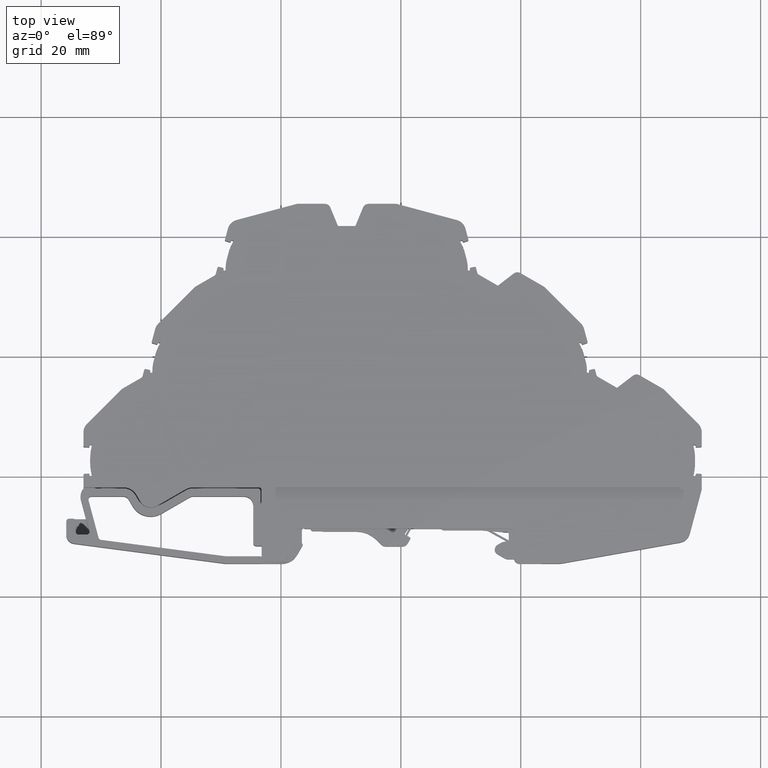
[diagram: clean part render]
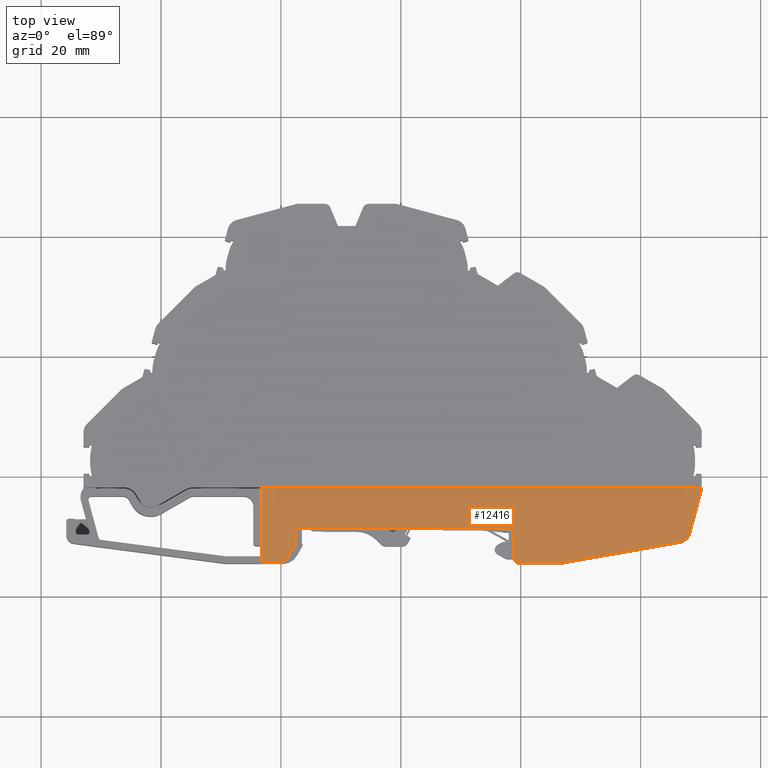
[diagram: same view with one face highlighted and labeled with its STEP entity id]
A machine part, top view. The second image highlights one B-rep face of the part: STEP entity #12416.
In plain terms, the highlighted planar face has unit normal (0, 0, 1).
Its self-contained STEP definition (entity closure, byte-faithful):
#372 = DIRECTION ( 'NONE',  ( 0.0000000000000000000, 0.0000000000000000000, -1.000000000000000000 ) ) ;
#387 = DIRECTION ( 'NONE',  ( -1.000000000000000000, 0.0000000000000000000, 0.0000000000000000000 ) ) ;
#406 = CARTESIAN_POINT ( 'NONE',  ( 236.2775535535379800, 17.65365339502465100, 6.154999999999994000 ) ) ;
#555 = DIRECTION ( 'NONE',  ( 0.9848077430902918400, 0.1736482339369035700, 0.0000000000000000000 ) ) ;
#583 = CARTESIAN_POINT ( 'NONE',  ( 286.9894377300924500, 5.529613790183489600, 6.155000000000002900 ) ) ;
#590 = LINE ( 'NONE', #583, #13464 ) ;
#605 = DIRECTION ( 'NONE',  ( 0.2587927769330645700, 0.9659328644410402100, -0.0000000000000000000 ) ) ;
#608 = CARTESIAN_POINT ( 'NONE',  ( 310.1925644423637300, 17.95374747195260000, 6.155000000000001100 ) ) ;
#615 = CARTESIAN_POINT ( 'NONE',  ( 231.6058932644780300, 5.453652283857863400, 6.155000000000002900 ) ) ;
#616 = LINE ( 'NONE', #608, #13519 ) ;
#627 = DIRECTION ( 'NONE',  ( 1.000000000000000000, 0.0000000000000000000, -0.0000000000000000000 ) ) ;
#638 = LINE ( 'NONE', #615, #13479 ) ;
#693 = CARTESIAN_POINT ( 'NONE',  ( 259.6925597848063500, 18.15365339502481100, 6.154999999999994000 ) ) ;
#697 = DIRECTION ( 'NONE',  ( 1.000000000000000000, 7.546894870103224200E-016, 0.0000000000000000000 ) ) ;
#712 = LINE ( 'NONE', #715, #13601 ) ;
#713 = LINE ( 'NONE', #693, #13653 ) ;
#715 = CARTESIAN_POINT ( 'NONE',  ( 310.1925644423637300, -4.273463303793795000, 6.155000000000002900 ) ) ;
#718 = DIRECTION ( 'NONE',  ( -0.0000000000000000000, 1.000000000000000000, 0.0000000000000000000 ) ) ;
#835 = DIRECTION ( 'NONE',  ( -1.000000000000000000, 0.0000000000000000000, 0.0000000000000000000 ) ) ;
#843 = CARTESIAN_POINT ( 'NONE',  ( 306.2472267758689700, 10.95613596654143900, 6.155000000000001100 ) ) ;
#866 = DIRECTION ( 'NONE',  ( 0.0000000000000000000, 0.0000000000000000000, -1.000000000000000000 ) ) ;
#4409 = EDGE_CURVE ( 'NONE', #18470, #18564, #15461, .T. ) ;
#4576 = EDGE_CURVE ( 'NONE', #18722, #18720, #15629, .T. ) ;
#4581 = EDGE_CURVE ( 'NONE', #18754, #18743, #15976, .T. ) ;
#4591 = EDGE_CURVE ( 'NONE', #18776, #18775, #15559, .T. ) ;
#4601 = EDGE_CURVE ( 'NONE', #18756, #18768, #15811, .T. ) ;
#4604 = EDGE_CURVE ( 'NONE', #18721, #18756, #9584, .T. ) ;
#4615 = EDGE_CURVE ( 'NONE', #18775, #18722, #7533, .T. ) ;
#4625 = EDGE_CURVE ( 'NONE', #18720, #18754, #7517, .T. ) ;
#4626 = EDGE_CURVE ( 'NONE', #18741, #18776, #7525, .T. ) ;
#4627 = EDGE_CURVE ( 'NONE', #18758, #18721, #7522, .T. ) ;
#4630 = EDGE_CURVE ( 'NONE', #18734, #18741, #13806, .T. ) ;
#4676 = EDGE_CURVE ( 'NONE', #18768, #18734, #7724, .T. ) ;
#5444 = CARTESIAN_POINT ( 'NONE',  ( 286.1211965693357800, 5.453652295947393600, 6.155000000000003800 ) ) ;
#5465 = CARTESIAN_POINT ( 'NONE',  ( 286.9894377300924500, 5.529613790183489600, 6.155000000000003800 ) ) ;
#5561 = CARTESIAN_POINT ( 'NONE',  ( 236.7775535535379800, 17.65365339230582700, 6.154999999999998500 ) ) ;
#5563 = CARTESIAN_POINT ( 'NONE',  ( 241.0351749861778200, 6.203652456086954800, 6.155000000000000200 ) ) ;
#5569 = CARTESIAN_POINT ( 'NONE',  ( 278.8425590747290800, 6.453652283857839400, 6.155000000000002000 ) ) ;
#5571 = CARTESIAN_POINT ( 'NONE',  ( 279.8425590747290800, 5.453652283857863400, 6.155000000000002000 ) ) ;
#5579 = CARTESIAN_POINT ( 'NONE',  ( 277.8425590175801300, 11.27553669938158400, 6.155000000000001100 ) ) ;
#5586 = CARTESIAN_POINT ( 'NONE',  ( 278.8425590747290800, 10.27553869041494000, 6.155000000000002000 ) ) ;
#5591 = CARTESIAN_POINT ( 'NONE',  ( 242.2705615297525100, 8.343404873994586500, 6.155000000000001100 ) ) ;
#5596 = CARTESIAN_POINT ( 'NONE',  ( 242.3375488198945500, 8.593404860197608700, 6.155000000000001100 ) ) ;
#5603 = CARTESIAN_POINT ( 'NONE',  ( 240.1691495664630600, 5.703652428493881200, 6.155000000000001100 ) ) ;
#5612 = CARTESIAN_POINT ( 'NONE',  ( 236.7775535526054100, 5.703652428493740000, 6.155000000000002900 ) ) ;
#5634 = CARTESIAN_POINT ( 'NONE',  ( 242.8375488181085900, 11.27553469888300300, 6.155000000000001100 ) ) ;
#5650 = CARTESIAN_POINT ( 'NONE',  ( 242.3375488198943200, 10.77553468998874600, 6.155000000000001100 ) ) ;
#5706 = CARTESIAN_POINT ( 'NONE',  ( 236.2775535535379800, 18.15365339502479400, 6.154999999999994000 ) ) ;
#5748 = CARTESIAN_POINT ( 'NONE',  ( 310.1925644423636800, 18.15365339502484700, 6.154999999999997600 ) ) ;
#5788 = CARTESIAN_POINT ( 'NONE',  ( 308.1790925047513400, 10.43855041267525000, 6.155000000000001100 ) ) ;
#5793 = CARTESIAN_POINT ( 'NONE',  ( 306.5945232437428000, 8.986520480360910700, 6.155000000000001100 ) ) ;
#5796 = CARTESIAN_POINT ( 'NONE',  ( 310.1925644423637300, 17.95374747195257100, 6.155000000000002900 ) ) ;
#7510 = CARTESIAN_POINT ( 'NONE',  ( 231.6058932644780300, 11.27553470834823400, 6.155000000000002900 ) ) ;
#7517 = LINE ( 'NONE', #7518, #13826 ) ;
#7518 = CARTESIAN_POINT ( 'NONE',  ( 278.8425590747290800, -4.273463303793795000, 6.155000000000002900 ) ) ;
#7519 = DIRECTION ( 'NONE',  ( -0.0000000000000000000, 1.000000000000000000, 0.0000000000000000000 ) ) ;
#7522 = LINE ( 'NONE', #7555, #13818 ) ;
#7525 = LINE ( 'NONE', #7541, #13749 ) ;
#7526 = DIRECTION ( 'NONE',  ( 0.0000000000000000000, -1.000000000000000000, -0.0000000000000000000 ) ) ;
#7533 = LINE ( 'NONE', #7510, #13731 ) ;
#7541 = CARTESIAN_POINT ( 'NONE',  ( 242.3375488198944700, -4.273463303793795000, 6.155000000000002900 ) ) ;
#7543 = DIRECTION ( 'NONE',  ( 1.000000000000000000, 0.0000000000000000000, -0.0000000000000000000 ) ) ;
#7554 = DIRECTION ( 'NONE',  ( -1.000000000000000000, -5.204170427933883400E-014, 0.0000000000000000000 ) ) ;
#7555 = CARTESIAN_POINT ( 'NONE',  ( 236.7775535535379800, -4.273463303793795000, 6.155000000000002900 ) ) ;
#7558 = CARTESIAN_POINT ( 'NONE',  ( 241.8375488198950100, 8.593404860197610500, 6.155000000000001100 ) ) ;
#7576 = DIRECTION ( 'NONE',  ( -0.0000000000000000000, -0.0000000000000000000, 1.000000000000000000 ) ) ;
#7596 = DIRECTION ( 'NONE',  ( 0.0000000000000000000, -1.000000000000000000, -0.0000000000000000000 ) ) ;
#7714 = CARTESIAN_POINT ( 'NONE',  ( 241.0351749861778200, 6.203652456086962800, 6.155000000000002900 ) ) ;
#7723 = DIRECTION ( 'NONE',  ( 0.4999999724063807800, 0.8660254197156215300, 0.0000000000000000000 ) ) ;
#7724 = LINE ( 'NONE', #7714, #13903 ) ;
#8965 = CARTESIAN_POINT ( 'NONE',  ( 286.1211965604079500, 10.45365250563500000, 6.155000000000003800 ) ) ;
#8972 = DIRECTION ( 'NONE',  ( 0.0000000000000000000, 0.0000000000000000000, -1.000000000000000000 ) ) ;
#8975 = DIRECTION ( 'NONE',  ( -1.000000000000000000, 0.0000000000000000000, 0.0000000000000000000 ) ) ;
#9494 = DIRECTION ( 'NONE',  ( -1.000000000000000000, 0.0000000000000000000, 0.0000000000000000000 ) ) ;
#9495 = DIRECTION ( 'NONE',  ( -1.000000000000000000, 0.0000000000000000000, 0.0000000000000000000 ) ) ;
#9500 = CARTESIAN_POINT ( 'NONE',  ( 277.8425590747290800, 10.27553869041494000, 6.155000000000001100 ) ) ;
#9520 = DIRECTION ( 'NONE',  ( 0.0000000000000000000, 0.0000000000000000000, -1.000000000000000000 ) ) ;
#9534 = DIRECTION ( 'NONE',  ( -0.0000000000000000000, -0.0000000000000000000, 1.000000000000000000 ) ) ;
#9537 = CARTESIAN_POINT ( 'NONE',  ( 279.8425590747290800, 6.453652283857839400, 6.155000000000001100 ) ) ;
#9541 = CARTESIAN_POINT ( 'NONE',  ( 240.1691495664630100, 6.703652428492859800, 6.155000000000001100 ) ) ;
#9543 = CARTESIAN_POINT ( 'NONE',  ( 231.6058932644780300, 5.703652428493764000, 6.155000000000002900 ) ) ;
#9546 = DIRECTION ( 'NONE',  ( 1.000000000000000000, 0.0000000000000000000, -0.0000000000000000000 ) ) ;
#9557 = DIRECTION ( 'NONE',  ( -1.000000000000000000, -5.204170427936338500E-015, 0.0000000000000000000 ) ) ;
#9561 = DIRECTION ( 'NONE',  ( -0.0000000000000000000, -0.0000000000000000000, 1.000000000000000000 ) ) ;
#9571 = DIRECTION ( 'NONE',  ( -1.000000000000000000, 0.0000000000000000000, 0.0000000000000000000 ) ) ;
#9572 = CARTESIAN_POINT ( 'NONE',  ( 242.8375488198944900, 10.77553468998874600, 6.155000000000001100 ) ) ;
#9584 = LINE ( 'NONE', #9543, #15026 ) ;
#9585 = DIRECTION ( 'NONE',  ( 0.0000000000000000000, 0.0000000000000000000, -1.000000000000000000 ) ) ;
#11251 = PLANE ( 'NONE',  #13127 ) ;
#11258 = DIRECTION ( 'NONE',  ( 1.000000000000000000, 0.0000000000000000000, -0.0000000000000000000 ) ) ;
#11288 = CARTESIAN_POINT ( 'NONE',  ( 231.6058932644780300, -4.273463303793795000, 6.155000000000002900 ) ) ;
#11289 = DIRECTION ( 'NONE',  ( 0.0000000000000000000, 0.0000000000000000000, 1.000000000000000000 ) ) ;
#11295 = FACE_OUTER_BOUND ( 'NONE', #18529, .T. ) ;
#12416 = ADVANCED_FACE ( 'NONE', ( #11295 ), #11251, .T. ) ;
#13127 = AXIS2_PLACEMENT_3D ( 'NONE', #11288, #11289, #11258 ) ;
#13464 = VECTOR ( 'NONE', #555, 1000.000000000000100 ) ;
#13479 = VECTOR ( 'NONE', #627, 1000.000000000000000 ) ;
#13519 = VECTOR ( 'NONE', #605, 1000.000000000000100 ) ;
#13601 = VECTOR ( 'NONE', #718, 1000.000000000000000 ) ;
#13653 = VECTOR ( 'NONE', #697, 1000.000000000000000 ) ;
#13731 = VECTOR ( 'NONE', #7543, 1000.000000000000000 ) ;
#13746 = AXIS2_PLACEMENT_3D ( 'NONE', #843, #866, #835 ) ;
#13749 = VECTOR ( 'NONE', #7519, 1000.000000000000000 ) ;
#13756 = CIRCLE ( 'NONE', #13746, 1.999999999999946300 ) ;
#13790 = AXIS2_PLACEMENT_3D ( 'NONE', #7558, #7576, #7554 ) ;
#13806 = CIRCLE ( 'NONE', #13790, 0.4999999999996673800 ) ;
#13818 = VECTOR ( 'NONE', #7596, 1000.000000000000000 ) ;
#13826 = VECTOR ( 'NONE', #7526, 1000.000000000000000 ) ;
#13903 = VECTOR ( 'NONE', #7723, 1000.000000000000200 ) ;
#14809 = CIRCLE ( 'NONE', #14826, 0.5000000000000004400 ) ;
#14826 = AXIS2_PLACEMENT_3D ( 'NONE', #406, #372, #387 ) ;
#15026 = VECTOR ( 'NONE', #9546, 1000.000000000000000 ) ;
#15418 = AXIS2_PLACEMENT_3D ( 'NONE', #8965, #8972, #8975 ) ;
#15461 = CIRCLE ( 'NONE', #15418, 4.999999998846815800 ) ;
#15532 = AXIS2_PLACEMENT_3D ( 'NONE', #9572, #9585, #9571 ) ;
#15559 = CIRCLE ( 'NONE', #15532, 0.5000000000002780000 ) ;
#15629 = CIRCLE ( 'NONE', #15630, 1.000000000000000900 ) ;
#15630 = AXIS2_PLACEMENT_3D ( 'NONE', #9500, #9520, #9494 ) ;
#15811 = CIRCLE ( 'NONE', #15947, 0.9999999999988629100 ) ;
#15947 = AXIS2_PLACEMENT_3D ( 'NONE', #9541, #9561, #9557 ) ;
#15976 = CIRCLE ( 'NONE', #15981, 1.000000000000000900 ) ;
#15981 = AXIS2_PLACEMENT_3D ( 'NONE', #9537, #9534, #9495 ) ;
#18470 = VERTEX_POINT ( 'NONE', #5465 ) ;
#18529 = EDGE_LOOP ( 'NONE', ( #21752, #21810, #21772, #21734, #21827, #21777, #21754, #21840, #21780, #21757, #21830, #21818, #21767, #21776, #21742, #21747, #21771, #21735, #21791 ) ) ;
#18564 = VERTEX_POINT ( 'NONE', #5444 ) ;
#18720 = VERTEX_POINT ( 'NONE', #5586 ) ;
#18721 = VERTEX_POINT ( 'NONE', #5612 ) ;
#18722 = VERTEX_POINT ( 'NONE', #5579 ) ;
#18734 = VERTEX_POINT ( 'NONE', #5591 ) ;
#18741 = VERTEX_POINT ( 'NONE', #5596 ) ;
#18743 = VERTEX_POINT ( 'NONE', #5571 ) ;
#18754 = VERTEX_POINT ( 'NONE', #5569 ) ;
#18756 = VERTEX_POINT ( 'NONE', #5603 ) ;
#18758 = VERTEX_POINT ( 'NONE', #5561 ) ;
#18768 = VERTEX_POINT ( 'NONE', #5563 ) ;
#18775 = VERTEX_POINT ( 'NONE', #5634 ) ;
#18776 = VERTEX_POINT ( 'NONE', #5650 ) ;
#18879 = VERTEX_POINT ( 'NONE', #5706 ) ;
#18920 = VERTEX_POINT ( 'NONE', #5796 ) ;
#18928 = VERTEX_POINT ( 'NONE', #5793 ) ;
#18932 = VERTEX_POINT ( 'NONE', #5788 ) ;
#18934 = VERTEX_POINT ( 'NONE', #5748 ) ;
#21734 = ORIENTED_EDGE ( 'NONE', *, *, #4591, .T. ) ;
#21735 = ORIENTED_EDGE ( 'NONE', *, *, #4604, .T. ) ;
#21742 = ORIENTED_EDGE ( 'NONE', *, *, #22420, .F. ) ;
#21747 = ORIENTED_EDGE ( 'NONE', *, *, #22309, .T. ) ;
#21752 = ORIENTED_EDGE ( 'NONE', *, *, #4676, .T. ) ;
#21754 = ORIENTED_EDGE ( 'NONE', *, *, #4625, .T. ) ;
#21757 = ORIENTED_EDGE ( 'NONE', *, *, #4409, .F. ) ;
#21767 = ORIENTED_EDGE ( 'NONE', *, *, #22377, .T. ) ;
#21771 = ORIENTED_EDGE ( 'NONE', *, *, #4627, .T. ) ;
#21772 = ORIENTED_EDGE ( 'NONE', *, *, #4626, .T. ) ;
#21776 = ORIENTED_EDGE ( 'NONE', *, *, #22414, .T. ) ;
#21777 = ORIENTED_EDGE ( 'NONE', *, *, #4576, .T. ) ;
#21780 = ORIENTED_EDGE ( 'NONE', *, *, #22389, .T. ) ;
#21791 = ORIENTED_EDGE ( 'NONE', *, *, #4601, .T. ) ;
#21810 = ORIENTED_EDGE ( 'NONE', *, *, #4630, .T. ) ;
#21818 = ORIENTED_EDGE ( 'NONE', *, *, #22453, .F. ) ;
#21827 = ORIENTED_EDGE ( 'NONE', *, *, #4615, .T. ) ;
#21830 = ORIENTED_EDGE ( 'NONE', *, *, #22364, .T. ) ;
#21840 = ORIENTED_EDGE ( 'NONE', *, *, #4581, .T. ) ;
#22309 = EDGE_CURVE ( 'NONE', #18879, #18758, #14809, .T. ) ;
#22364 = EDGE_CURVE ( 'NONE', #18470, #18928, #590, .T. ) ;
#22377 = EDGE_CURVE ( 'NONE', #18932, #18920, #616, .T. ) ;
#22389 = EDGE_CURVE ( 'NONE', #18743, #18564, #638, .T. ) ;
#22414 = EDGE_CURVE ( 'NONE', #18920, #18934, #712, .T. ) ;
#22420 = EDGE_CURVE ( 'NONE', #18879, #18934, #713, .T. ) ;
#22453 = EDGE_CURVE ( 'NONE', #18932, #18928, #13756, .T. ) ;